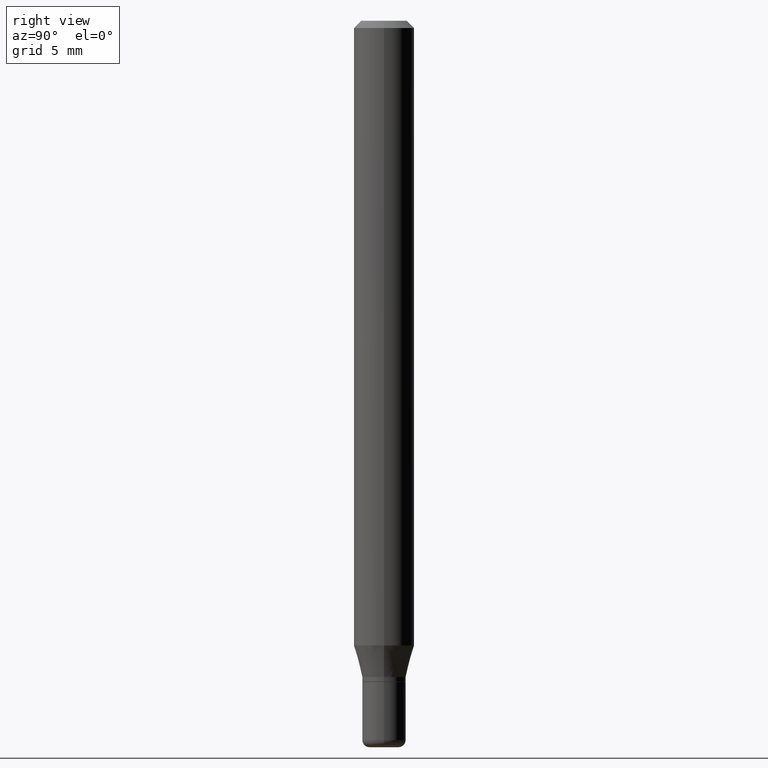
[diagram: clean part render]
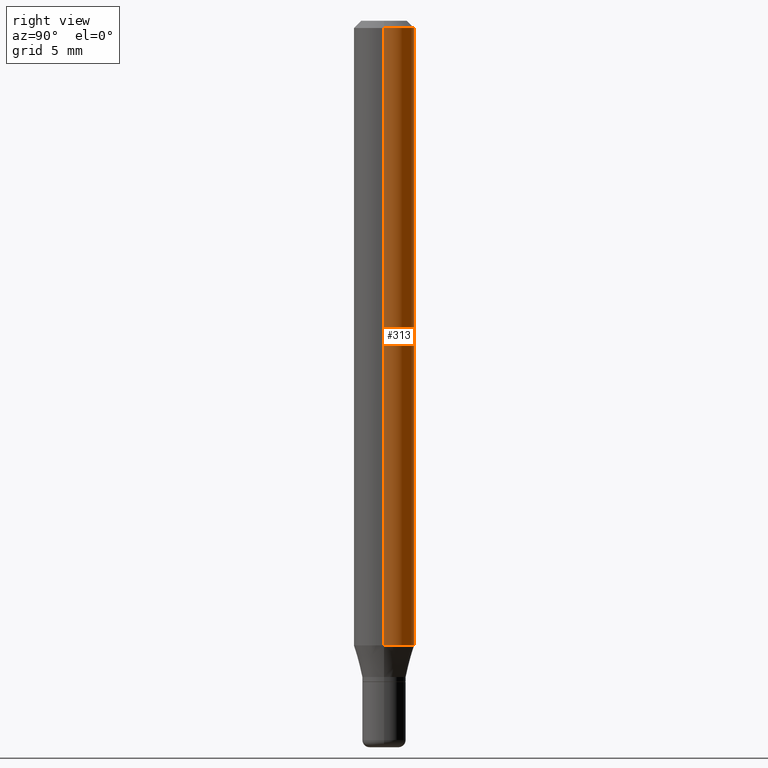
[diagram: same view with one face highlighted and labeled with its STEP entity id]
A machine part, right view. The second image highlights one B-rep face of the part: STEP entity #313.
In plain terms, the highlighted cylindrical surface (edge-blend (fillet) strip) has radius 1.5875 mm, axis along (-0, 0, 1).
Its self-contained STEP definition (entity closure, byte-faithful):
#8 = EDGE_CURVE ( 'NONE', #54, #101, #311, .T. ) ;
#11 = ORIENTED_EDGE ( 'NONE', *, *, #42, .T. ) ;
#15 = EDGE_LOOP ( 'NONE', ( #169, #11, #209, #354 ) ) ;
#23 = CARTESIAN_POINT ( 'NONE',  ( 0.000000000000000000, 0.000000000000000000, 0.000000000000000000 ) ) ;
#37 = VECTOR ( 'NONE', #498, 39.37007874015748143 ) ;
#39 = CARTESIAN_POINT ( 'NONE',  ( 0.06250000000000000000, -4.939360630858633822E-15, -1.289689110867545008 ) ) ;
#42 = EDGE_CURVE ( 'NONE', #201, #402, #172, .T. ) ;
#43 = DIRECTION ( 'NONE',  ( 1.000000000000000000, -6.982962677686262766E-15, 0.000000000000000000 ) ) ;
#54 = VERTEX_POINT ( 'NONE', #39 ) ;
#56 = AXIS2_PLACEMENT_3D ( 'NONE', #23, #75, #180 ) ;
#71 = VECTOR ( 'NONE', #486, 39.37007874015748143 ) ;
#75 = DIRECTION ( 'NONE',  ( -2.445468806185136597E-29, 3.491481338843145583E-15, 1.000000000000000000 ) ) ;
#77 = CARTESIAN_POINT ( 'NONE',  ( 3.153894490303225812E-29, -4.502925463503242152E-15, -1.289689110867545008 ) ) ;
#101 = VERTEX_POINT ( 'NONE', #333 ) ;
#106 = CIRCLE ( 'NONE', #297, 0.06250000000000000000 ) ;
#143 = CARTESIAN_POINT ( 'NONE',  ( -0.06250000000000000000, -1.833559631942881408E-15, -0.01499999999999970281 ) ) ;
#169 = ORIENTED_EDGE ( 'NONE', *, *, #515, .T. ) ;
#172 = LINE ( 'NONE', #320, #37 ) ;
#174 = EDGE_CURVE ( 'NONE', #101, #402, #106, .T. ) ;
#180 = DIRECTION ( 'NONE',  ( 1.000000000000000000, -6.982962677686266711E-15, 4.876176775795935793E-29 ) ) ;
#194 = DIRECTION ( 'NONE',  ( 1.000000000000000000, -6.982962677686266711E-15, 0.000000000000000000 ) ) ;
#201 = VERTEX_POINT ( 'NONE', #271 ) ;
#209 = ORIENTED_EDGE ( 'NONE', *, *, #174, .F. ) ;
#220 = CYLINDRICAL_SURFACE ( 'NONE', #56, 0.06250000000000000000 ) ;
#222 = AXIS2_PLACEMENT_3D ( 'NONE', #77, #339, #43 ) ;
#256 = FACE_OUTER_BOUND ( 'NONE', #15, .T. ) ;
#271 = CARTESIAN_POINT ( 'NONE',  ( -0.06250000000000000000, -4.058836253653178747E-15, -1.289689110867545008 ) ) ;
#297 = AXIS2_PLACEMENT_3D ( 'NONE', #430, #401, #194 ) ;
#311 = LINE ( 'NONE', #452, #71 ) ;
#313 = ADVANCED_FACE ( 'NONE', ( #256 ), #220, .T. ) ;
#320 = CARTESIAN_POINT ( 'NONE',  ( -0.06250000000000000000, 4.440892098500626162E-16, -3.074334431409316114E-30 ) ) ;
#333 = CARTESIAN_POINT ( 'NONE',  ( 0.06250000000000000000, -4.888073874380378612E-16, -0.01499999999999970281 ) ) ;
#339 = DIRECTION ( 'NONE',  ( -2.445468806185136597E-29, 3.491481338843145583E-15, 1.000000000000000000 ) ) ;
#354 = ORIENTED_EDGE ( 'NONE', *, *, #8, .F. ) ;
#401 = DIRECTION ( 'NONE',  ( -2.445468806185136597E-29, 3.491481338843145583E-15, 1.000000000000000000 ) ) ;
#402 = VERTEX_POINT ( 'NONE', #143 ) ;
#430 = CARTESIAN_POINT ( 'NONE',  ( 3.668203209277632395E-31, -5.237222008264614861E-17, -0.01499999999999970281 ) ) ;
#446 = CIRCLE ( 'NONE', #222, 0.06250000000000000000 ) ;
#452 = CARTESIAN_POINT ( 'NONE',  ( 0.06250000000000000000, -4.364351673553916694E-16, 3.047610484872459871E-30 ) ) ;
#486 = DIRECTION ( 'NONE',  ( -2.445468806185136877E-29, 3.491481338843145188E-15, 1.000000000000000000 ) ) ;
#498 = DIRECTION ( 'NONE',  ( -2.445468806185136877E-29, 3.491481338843145188E-15, 1.000000000000000000 ) ) ;
#515 = EDGE_CURVE ( 'NONE', #54, #201, #446, .T. ) ;